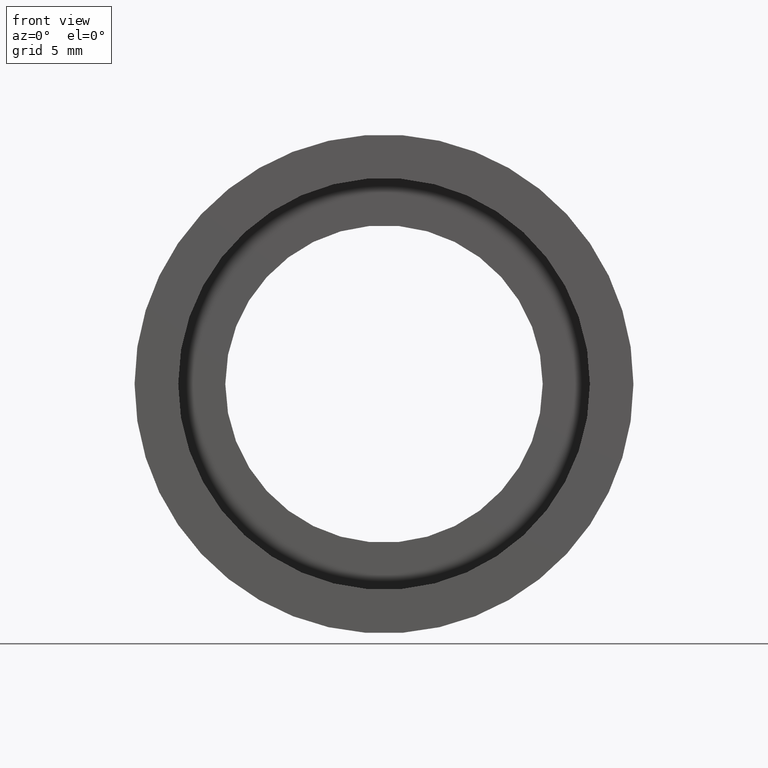
[diagram: clean part render]
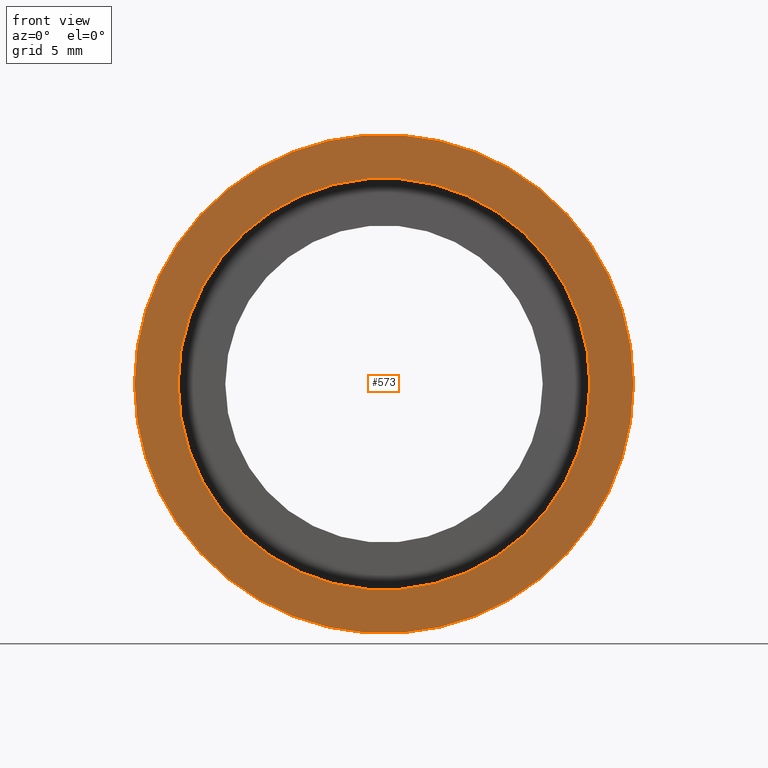
[diagram: same view with one face highlighted and labeled with its STEP entity id]
A machine part, front view. The second image highlights one B-rep face of the part: STEP entity #573.
In plain terms, the highlighted planar face has unit normal (-0, 1, 0).
Its self-contained STEP definition (entity closure, byte-faithful):
#2 = EDGE_LOOP ( 'NONE', ( #236, #10 ) ) ;
#10 = ORIENTED_EDGE ( 'NONE', *, *, #563, .F. ) ;
#53 = CIRCLE ( 'NONE', #71, 15.87499999999999600 ) ;
#57 = AXIS2_PLACEMENT_3D ( 'NONE', #201, #495, #390 ) ;
#71 = AXIS2_PLACEMENT_3D ( 'NONE', #413, #169, #417 ) ;
#72 = PLANE ( 'NONE',  #408 ) ;
#98 = DIRECTION ( 'NONE',  ( -1.000000000000000000, -1.224646799147351000E-016, 0.0000000000000000000 ) ) ;
#108 = CARTESIAN_POINT ( 'NONE',  ( 15.87500000000000000, -1.525320158307194900E-015, 1.944126793646423200E-015 ) ) ;
#112 = VERTEX_POINT ( 'NONE', #343 ) ;
#116 = CARTESIAN_POINT ( 'NONE',  ( 15.87500000000000000, -1.944126793646428200E-016, 0.0000000000000000000 ) ) ;
#134 = EDGE_LOOP ( 'NONE', ( #307, #548 ) ) ;
#169 = DIRECTION ( 'NONE',  ( -1.224646799147351000E-016, 1.000000000000000000, -0.0000000000000000000 ) ) ;
#174 = VERTEX_POINT ( 'NONE', #531 ) ;
#201 = CARTESIAN_POINT ( 'NONE',  ( 2.067940818438636500E-015, -3.469446951953614200E-015, 0.0000000000000000000 ) ) ;
#205 = CARTESIAN_POINT ( 'NONE',  ( 2.067940818438636100E-015, 0.0000000000000000000, 0.0000000000000000000 ) ) ;
#236 = ORIENTED_EDGE ( 'NONE', *, *, #377, .F. ) ;
#245 = CIRCLE ( 'NONE', #570, 13.10000000000000000 ) ;
#255 = FACE_OUTER_BOUND ( 'NONE', #2, .T. ) ;
#274 = DIRECTION ( 'NONE',  ( -1.000000000000000000, -1.224646799147351000E-016, 0.0000000000000000000 ) ) ;
#283 = FACE_BOUND ( 'NONE', #134, .T. ) ;
#285 = EDGE_CURVE ( 'NONE', #174, #499, #329, .T. ) ;
#302 = DIRECTION ( 'NONE',  ( -1.224646799147351000E-016, 1.000000000000000000, -0.0000000000000000000 ) ) ;
#307 = ORIENTED_EDGE ( 'NONE', *, *, #285, .T. ) ;
#310 = CARTESIAN_POINT ( 'NONE',  ( 13.10000000000000100, 1.604287306883029700E-015, 1.604287306883032600E-015 ) ) ;
#320 = EDGE_CURVE ( 'NONE', #499, #174, #245, .T. ) ;
#322 = DIRECTION ( 'NONE',  ( -1.224646799147351000E-016, 1.000000000000000000, 0.0000000000000000000 ) ) ;
#329 = CIRCLE ( 'NONE', #419, 13.10000000000000000 ) ;
#343 = CARTESIAN_POINT ( 'NONE',  ( -15.87499999999999300, -5.413573745600033100E-015, 0.0000000000000000000 ) ) ;
#377 = EDGE_CURVE ( 'NONE', #112, #460, #561, .T. ) ;
#385 = CARTESIAN_POINT ( 'NONE',  ( 2.067940818438636100E-015, 0.0000000000000000000, 0.0000000000000000000 ) ) ;
#390 = DIRECTION ( 'NONE',  ( -1.000000000000000000, -1.224646799147350700E-016, 0.0000000000000000000 ) ) ;
#408 = AXIS2_PLACEMENT_3D ( 'NONE', #116, #322, #274 ) ;
#413 = CARTESIAN_POINT ( 'NONE',  ( 2.067940818438636500E-015, -3.469446951953614200E-015, 0.0000000000000000000 ) ) ;
#417 = DIRECTION ( 'NONE',  ( -1.000000000000000000, -1.224646799147350700E-016, 0.0000000000000000000 ) ) ;
#419 = AXIS2_PLACEMENT_3D ( 'NONE', #205, #302, #427 ) ;
#427 = DIRECTION ( 'NONE',  ( -1.000000000000000000, -1.224646799147351000E-016, 0.0000000000000000000 ) ) ;
#460 = VERTEX_POINT ( 'NONE', #108 ) ;
#495 = DIRECTION ( 'NONE',  ( -1.224646799147351000E-016, 1.000000000000000000, -0.0000000000000000000 ) ) ;
#499 = VERTEX_POINT ( 'NONE', #310 ) ;
#531 = CARTESIAN_POINT ( 'NONE',  ( -13.09999999999999800, -1.604287306883029700E-015, 0.0000000000000000000 ) ) ;
#548 = ORIENTED_EDGE ( 'NONE', *, *, #320, .T. ) ;
#561 = CIRCLE ( 'NONE', #57, 15.87499999999999600 ) ;
#563 = EDGE_CURVE ( 'NONE', #460, #112, #53, .T. ) ;
#568 = DIRECTION ( 'NONE',  ( -1.224646799147351000E-016, 1.000000000000000000, -0.0000000000000000000 ) ) ;
#570 = AXIS2_PLACEMENT_3D ( 'NONE', #385, #568, #98 ) ;
#573 = ADVANCED_FACE ( 'NONE', ( #255, #283 ), #72, .F. ) ;